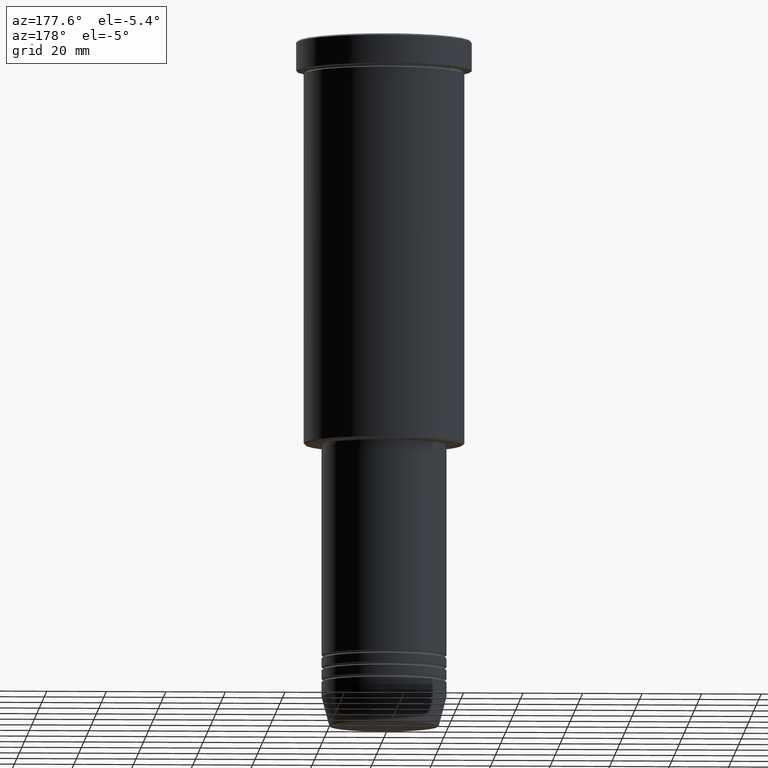
[diagram: clean part render]
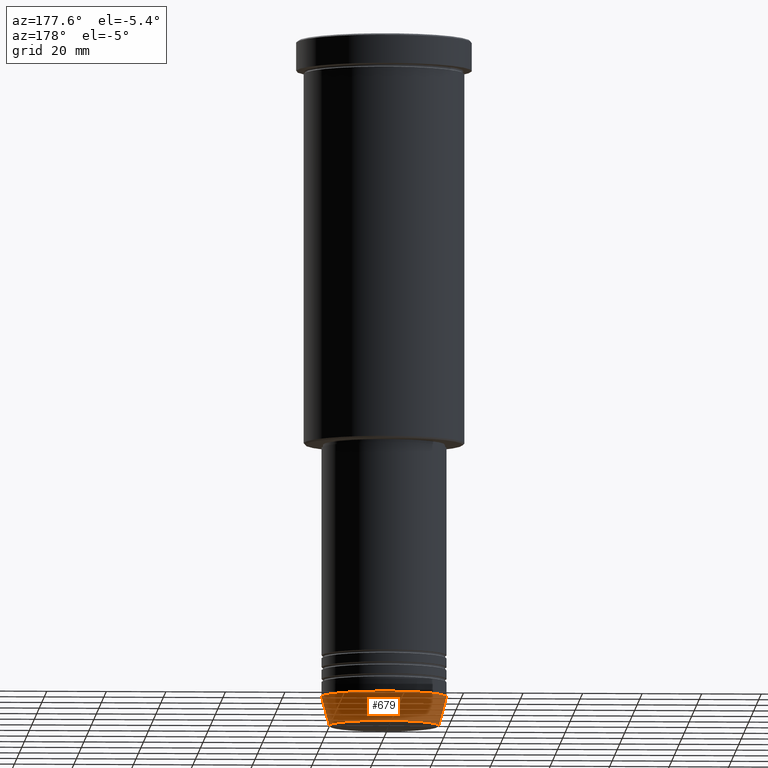
[diagram: same view with one face highlighted and labeled with its STEP entity id]
A machine part, auxiliary view. The second image highlights one B-rep face of the part: STEP entity #679.
In plain terms, the highlighted conical surface has half-angle 15 deg.
Its self-contained STEP definition (entity closure, byte-faithful):
#40 = ORIENTED_EDGE ( 'NONE', *, *, #525, .F. ) ;
#53 = ORIENTED_EDGE ( 'NONE', *, *, #293, .T. ) ;
#157 = DIRECTION ( 'NONE',  ( 1.000000000000000000, 0.000000000000000000, 0.000000000000000000 ) ) ;
#180 = ORIENTED_EDGE ( 'NONE', *, *, #761, .T. ) ;
#191 = DIRECTION ( 'NONE',  ( 0.2588190451025211836, 0.000000000000000000, 0.9659258262890680902 ) ) ;
#219 = CARTESIAN_POINT ( 'NONE',  ( -21.00000000000000000, 2.571758278209441661E-15, -221.0000000000000284 ) ) ;
#252 = DIRECTION ( 'NONE',  ( -0.000000000000000000, -0.000000000000000000, 1.000000000000000000 ) ) ;
#277 = CARTESIAN_POINT ( 'NONE',  ( 0.000000000000000000, 0.000000000000000000, -230.6294095225513274 ) ) ;
#285 = VERTEX_POINT ( 'NONE', #801 ) ;
#293 = EDGE_CURVE ( 'NONE', #688, #455, #1166, .T. ) ;
#410 = AXIS2_PLACEMENT_3D ( 'NONE', #713, #252, #157 ) ;
#413 = DIRECTION ( 'NONE',  ( -0.2588190451025211836, 3.169619151431770488E-17, 0.9659258262890680902 ) ) ;
#455 = VERTEX_POINT ( 'NONE', #219 ) ;
#472 = DIRECTION ( 'NONE',  ( 1.000000000000000000, 0.000000000000000000, 0.000000000000000000 ) ) ;
#508 = AXIS2_PLACEMENT_3D ( 'NONE', #277, #726, #472 ) ;
#525 = EDGE_CURVE ( 'NONE', #285, #455, #603, .T. ) ;
#551 = VECTOR ( 'NONE', #191, 1000.000000000000114 ) ;
#591 = AXIS2_PLACEMENT_3D ( 'NONE', #686, #1057, #1122 ) ;
#603 = CIRCLE ( 'NONE', #591, 21.00000000000000000 ) ;
#650 = VERTEX_POINT ( 'NONE', #694 ) ;
#662 = ORIENTED_EDGE ( 'NONE', *, *, #1062, .F. ) ;
#679 = ADVANCED_FACE ( 'NONE', ( #977 ), #939, .T. ) ;
#686 = CARTESIAN_POINT ( 'NONE',  ( 0.000000000000000000, 0.000000000000000000, -221.0000000000000284 ) ) ;
#688 = VERTEX_POINT ( 'NONE', #690 ) ;
#690 = CARTESIAN_POINT ( 'NONE',  ( -18.41980749484383040, 2.413767053578267064E-15, -230.6294095225513274 ) ) ;
#694 = CARTESIAN_POINT ( 'NONE',  ( 18.41980749484383040, 0.000000000000000000, -230.6294095225513274 ) ) ;
#713 = CARTESIAN_POINT ( 'NONE',  ( 0.000000000000000000, 0.000000000000000000, -221.0000000000000284 ) ) ;
#726 = DIRECTION ( 'NONE',  ( -0.000000000000000000, -0.000000000000000000, 1.000000000000000000 ) ) ;
#737 = VECTOR ( 'NONE', #413, 1000.000000000000114 ) ;
#761 = EDGE_CURVE ( 'NONE', #650, #688, #958, .T. ) ;
#801 = CARTESIAN_POINT ( 'NONE',  ( 21.00000000000000000, 0.000000000000000000, -221.0000000000000284 ) ) ;
#804 = LINE ( 'NONE', #1016, #551 ) ;
#939 = CONICAL_SURFACE ( 'NONE', #410, 21.00000000000000000, 0.2617993877991499074 ) ;
#958 = CIRCLE ( 'NONE', #508, 18.41980749484383040 ) ;
#967 = CARTESIAN_POINT ( 'NONE',  ( -21.00000000000000000, 2.571758278209441661E-15, -221.0000000000000284 ) ) ;
#977 = FACE_OUTER_BOUND ( 'NONE', #1061, .T. ) ;
#1016 = CARTESIAN_POINT ( 'NONE',  ( 21.00000000000000000, 0.000000000000000000, -221.0000000000000284 ) ) ;
#1057 = DIRECTION ( 'NONE',  ( -0.000000000000000000, -0.000000000000000000, 1.000000000000000000 ) ) ;
#1061 = EDGE_LOOP ( 'NONE', ( #180, #53, #40, #662 ) ) ;
#1062 = EDGE_CURVE ( 'NONE', #650, #285, #804, .T. ) ;
#1122 = DIRECTION ( 'NONE',  ( 1.000000000000000000, 0.000000000000000000, 0.000000000000000000 ) ) ;
#1166 = LINE ( 'NONE', #967, #737 ) ;